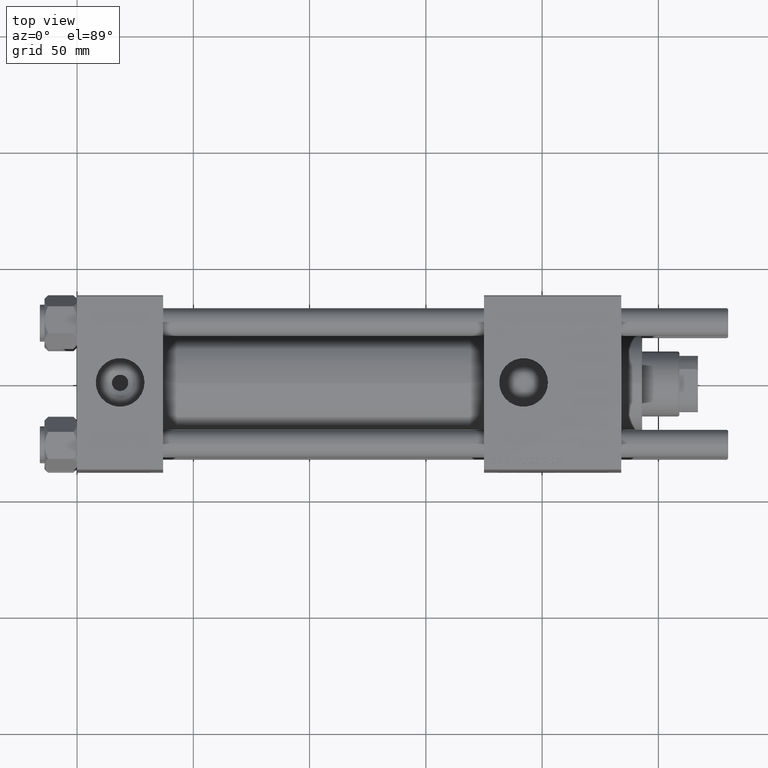
[diagram: clean part render]
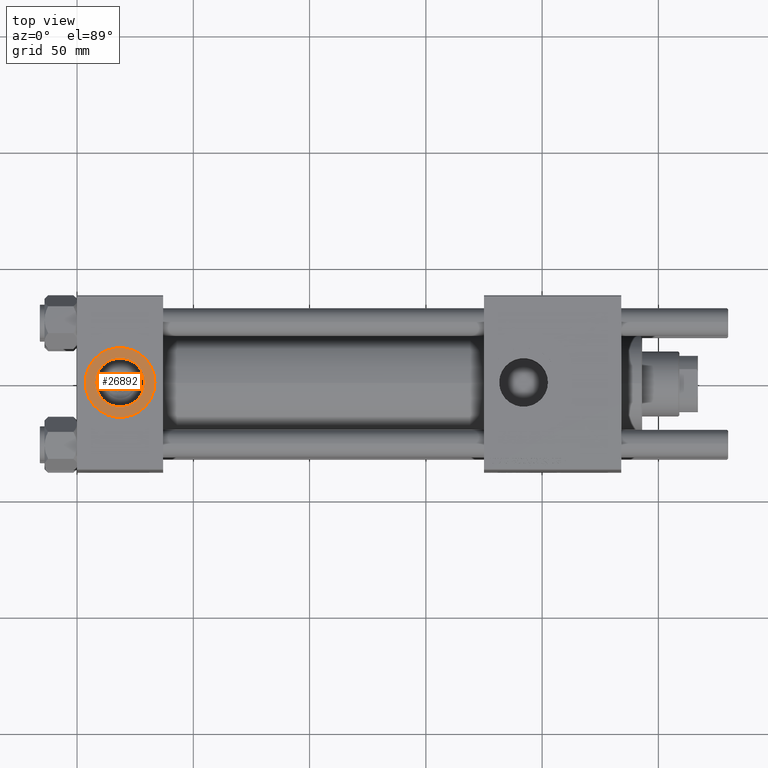
[diagram: same view with one face highlighted and labeled with its STEP entity id]
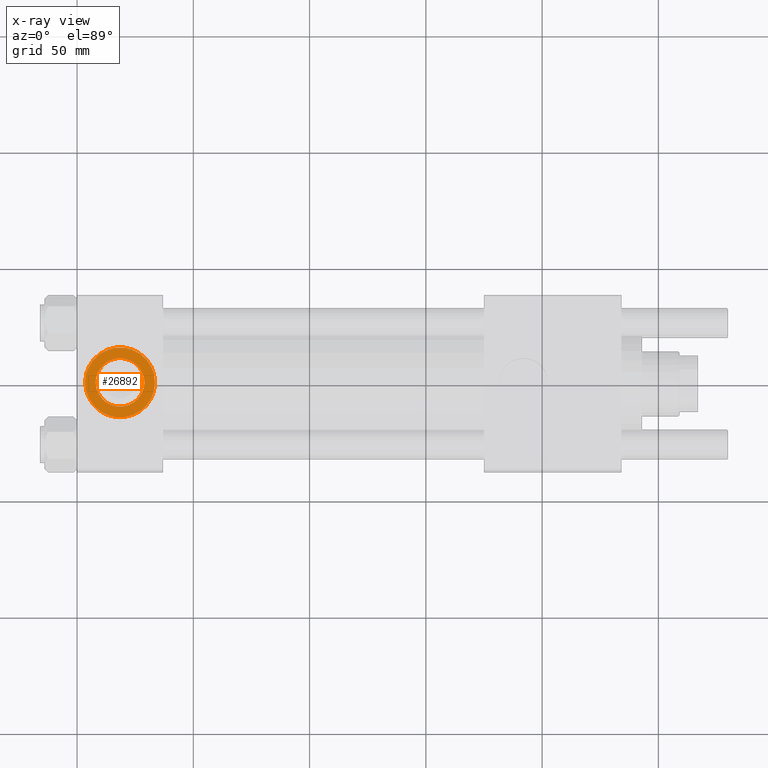
[diagram: x-ray of the same camera — body ghosted, the highlighted face saturated]
A machine part, top view. The second image highlights one B-rep face of the part: STEP entity #26892.
The next image is the same camera in x-ray: the body ghosted, the highlighted face saturated — about 0% of this face is hidden behind the body in this view.
In plain terms, the highlighted planar face has unit normal (0, 0, 1).
Its self-contained STEP definition (entity closure, byte-faithful):
#2519 = DIRECTION ( 'NONE',  ( 0.000000000000000000, 0.000000000000000000, 1.000000000000000000 ) ) ;
#3856 = CARTESIAN_POINT ( 'NONE',  ( 33.50000000000000000, -5.204170427930421283E-15, 37.29999999999999716 ) ) ;
#3896 = CARTESIAN_POINT ( 'NONE',  ( 3.499999999999997780, -3.367200229209391300E-15, 37.29999999999999716 ) ) ;
#4606 = CARTESIAN_POINT ( 'NONE',  ( 18.50000000000000000, -5.204170427930421283E-15, 37.29999999999999716 ) ) ;
#5257 = ORIENTED_EDGE ( 'NONE', *, *, #18444, .T. ) ;
#6718 = EDGE_CURVE ( 'NONE', #44415, #8795, #43077, .T. ) ;
#8795 = VERTEX_POINT ( 'NONE', #3896 ) ;
#9935 = CIRCLE ( 'NONE', #30008, 10.48000000000000043 ) ;
#10236 = CARTESIAN_POINT ( 'NONE',  ( 18.50000000000000000, -5.204170427930421283E-15, 37.29999999999999716 ) ) ;
#10325 = DIRECTION ( 'NONE',  ( 0.000000000000000000, 0.000000000000000000, 1.000000000000000000 ) ) ;
#12759 = AXIS2_PLACEMENT_3D ( 'NONE', #53751, #10325, #27880 ) ;
#14112 = FACE_BOUND ( 'NONE', #52883, .T. ) ;
#14915 = CARTESIAN_POINT ( 'NONE',  ( 18.50000000000000000, -5.204170427930421283E-15, 37.29999999999999716 ) ) ;
#16194 = CARTESIAN_POINT ( 'NONE',  ( 8.019999999999999574, -3.920740582423995006E-15, 37.29999999999999716 ) ) ;
#16792 = ORIENTED_EDGE ( 'NONE', *, *, #6718, .T. ) ;
#18444 = EDGE_CURVE ( 'NONE', #8795, #44415, #24129, .T. ) ;
#19034 = CARTESIAN_POINT ( 'NONE',  ( 18.50000000000000000, -5.204170427930421283E-15, 37.29999999999999716 ) ) ;
#19219 = ORIENTED_EDGE ( 'NONE', *, *, #44020, .F. ) ;
#21760 = CIRCLE ( 'NONE', #33674, 10.48000000000000043 ) ;
#22172 = DIRECTION ( 'NONE',  ( 1.000000000000000000, 0.000000000000000000, -0.000000000000000000 ) ) ;
#22779 = DIRECTION ( 'NONE',  ( 1.000000000000000000, 0.000000000000000000, 0.000000000000000000 ) ) ;
#24129 = CIRCLE ( 'NONE', #56278, 15.00000000000000355 ) ;
#26486 = FACE_OUTER_BOUND ( 'NONE', #46623, .T. ) ;
#26892 = ADVANCED_FACE ( 'NONE', ( #14112, #26486 ), #48634, .T. ) ;
#27880 = DIRECTION ( 'NONE',  ( 1.000000000000000000, 0.000000000000000000, 0.000000000000000000 ) ) ;
#29859 = CARTESIAN_POINT ( 'NONE',  ( 28.98000000000000043, -5.204170427930421283E-15, 37.29999999999999716 ) ) ;
#30008 = AXIS2_PLACEMENT_3D ( 'NONE', #19034, #36310, #22779 ) ;
#33674 = AXIS2_PLACEMENT_3D ( 'NONE', #10236, #49649, #50214 ) ;
#36310 = DIRECTION ( 'NONE',  ( 0.000000000000000000, 0.000000000000000000, 1.000000000000000000 ) ) ;
#43077 = CIRCLE ( 'NONE', #12759, 15.00000000000000355 ) ;
#44020 = EDGE_CURVE ( 'NONE', #47653, #47173, #21760, .T. ) ;
#44331 = DIRECTION ( 'NONE',  ( 0.000000000000000000, 0.000000000000000000, 1.000000000000000000 ) ) ;
#44415 = VERTEX_POINT ( 'NONE', #3856 ) ;
#46139 = AXIS2_PLACEMENT_3D ( 'NONE', #4606, #44331, #22172 ) ;
#46623 = EDGE_LOOP ( 'NONE', ( #16792, #5257 ) ) ;
#47173 = VERTEX_POINT ( 'NONE', #16194 ) ;
#47653 = VERTEX_POINT ( 'NONE', #29859 ) ;
#48051 = EDGE_CURVE ( 'NONE', #47173, #47653, #9935, .T. ) ;
#48634 = PLANE ( 'NONE',  #46139 ) ;
#49649 = DIRECTION ( 'NONE',  ( 0.000000000000000000, 0.000000000000000000, 1.000000000000000000 ) ) ;
#50214 = DIRECTION ( 'NONE',  ( 1.000000000000000000, 0.000000000000000000, 0.000000000000000000 ) ) ;
#50568 = DIRECTION ( 'NONE',  ( 1.000000000000000000, 0.000000000000000000, 0.000000000000000000 ) ) ;
#51030 = ORIENTED_EDGE ( 'NONE', *, *, #48051, .F. ) ;
#52883 = EDGE_LOOP ( 'NONE', ( #19219, #51030 ) ) ;
#53751 = CARTESIAN_POINT ( 'NONE',  ( 18.50000000000000000, -5.204170427930421283E-15, 37.29999999999999716 ) ) ;
#56278 = AXIS2_PLACEMENT_3D ( 'NONE', #14915, #2519, #50568 ) ;